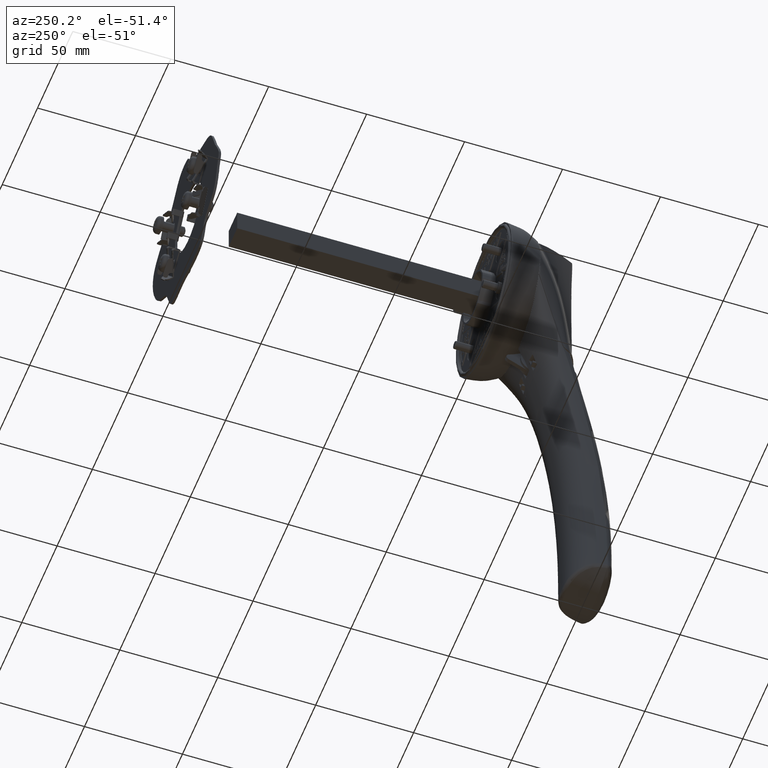
[diagram: clean part render]
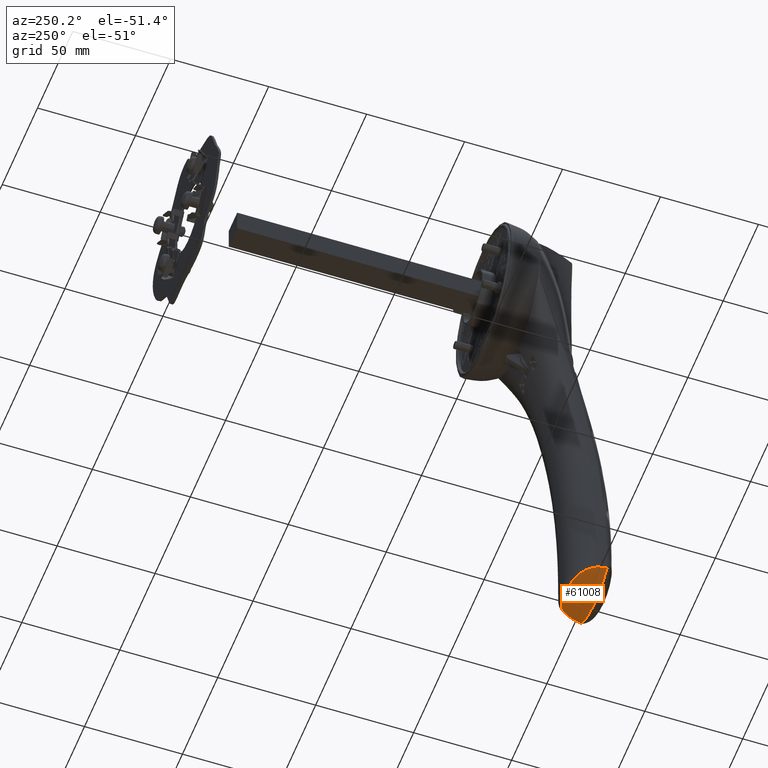
[diagram: same view with one face highlighted and labeled with its STEP entity id]
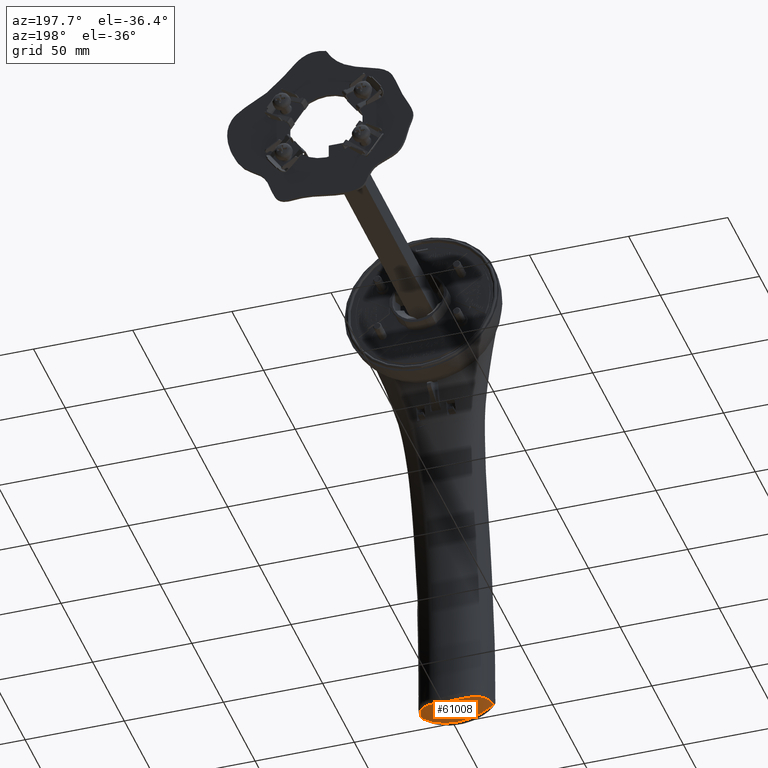
[diagram: same view with one face highlighted and labeled with its STEP entity id]
A machine part, auxiliary view. The second image highlights one B-rep face of the part: STEP entity #61008.
A second angle (auxiliary view) of the same face is appended — the face is thin or edge-on in the first view.
In plain terms, the highlighted conical surface has half-angle 7 deg.
Its self-contained STEP definition (entity closure, byte-faithful):
#15148=CARTESIAN_POINT('',(3.231428027554E-6,-5.626078505527E1,
-1.799437525151E2));
#15149=DIRECTION('',(0.E0,-1.E0,0.E0));
#15150=DIRECTION('',(-6.088506228290E-1,0.E0,-7.932848914991E-1));
#15151=AXIS2_PLACEMENT_3D('',#15148,#15149,#15150);
#15162=CARTESIAN_POINT('',(-1.814123205605E1,-5.626080679804E1,
-2.035824896846E2));
#15163=CARTESIAN_POINT('',(-1.810222139639E1,-5.599485802014E1,
-2.035712674617E2));
#15164=CARTESIAN_POINT('',(-1.802151278388E1,-5.543397917153E1,
-2.035463168761E2));
#15165=CARTESIAN_POINT('',(-1.788739697803E1,-5.459283047614E1,
-2.035186418850E2));
#15166=CARTESIAN_POINT('',(-1.775565903684E1,-5.387826353590E1,
-2.035082582568E2));
#15167=CARTESIAN_POINT('',(-1.763581293648E1,-5.331446953911E1,
-2.035116471888E2));
#15168=CARTESIAN_POINT('',(-1.744121268854E1,-5.248099572597E1,
-2.035291676805E2));
#15169=CARTESIAN_POINT('',(-1.708668726509E1,-5.127331630794E1,
-2.036062489023E2));
#15170=CARTESIAN_POINT('',(-1.655841593996E1,-5.000350192609E1,
-2.037896849698E2));
#15171=CARTESIAN_POINT('',(-1.611330975192E1,-4.915192161167E1,
-2.039653053998E2));
#15172=CARTESIAN_POINT('',(-1.583623422998E1,-4.867490956874E1,
-2.040784481645E2));
#15173=CARTESIAN_POINT('',(-1.540213410925E1,-4.797620445417E1,
-2.042585318738E2));
#15174=CARTESIAN_POINT('',(-1.484532746298E1,-4.721232581820E1,
-2.044951698323E2));
#15175=CARTESIAN_POINT('',(-1.414285480286E1,-4.640273938905E1,
-2.047896227944E2));
#15176=CARTESIAN_POINT('',(-1.358367874562E1,-4.582693526571E1,
-2.050195866158E2));
#15177=CARTESIAN_POINT('',(-1.309074207403E1,-4.537215505438E1,
-2.052166716018E2));
#15178=CARTESIAN_POINT('',(-1.268010144666E1,-4.502359161215E1,
-2.053764676888E2));
#15179=CARTESIAN_POINT('',(-1.225974037788E1,-4.468658785046E1,
-2.055368836739E2));
#15180=CARTESIAN_POINT('',(-1.172311829734E1,-4.429235355949E1,
-2.057353136779E2));
#15181=CARTESIAN_POINT('',(-1.083753647805E1,-4.371386942310E1,
-2.060473018833E2));
#15182=CARTESIAN_POINT('',(-9.680793689632E0,-4.308477297526E1,
-2.064223980770E2));
#15183=CARTESIAN_POINT('',(-8.580750614667E0,-4.262757266418E1,
-2.067329887714E2));
#15184=CARTESIAN_POINT('',(-7.821001767517E0,-4.236726521193E1,
-2.069256734171E2));
#15185=CARTESIAN_POINT('',(-7.306151647312E0,-4.220531146716E1,
-2.070503285343E2));
#15186=CARTESIAN_POINT('',(-6.400897618537E0,-4.195717510241E1,
-2.072537078907E2));
#15187=CARTESIAN_POINT('',(-5.091817896417E0,-4.169626622238E1,
-2.075019729394E2));
#15188=CARTESIAN_POINT('',(-3.478331823675E0,-4.151242904192E1,
-2.077298157232E2));
#15189=CARTESIAN_POINT('',(-2.077966604649E0,-4.144790404502E1,
-2.078557409945E2));
#15190=CARTESIAN_POINT('',(-1.055137367612E0,-4.143386735675E1,
-2.079036424604E2));
#15191=CARTESIAN_POINT('',(-4.583254145786E-1,-4.143127219802E1,
-2.079179265E2));
#15192=CARTESIAN_POINT('',(1.472291190251E-1,-4.143095381939E1,
-2.079229180984E2));
#15193=CARTESIAN_POINT('',(8.980547627805E-1,-4.143212612023E1,
-2.079108517734E2));
#15194=CARTESIAN_POINT('',(2.061075782727E0,-4.144820763948E1,
-2.078569363954E2));
#15195=CARTESIAN_POINT('',(3.464514380429E0,-4.151231531413E1,
-2.077317381468E2));
#15196=CARTESIAN_POINT('',(4.686526187866E0,-4.165108201268E1,
-2.075595671301E2));
#15197=CARTESIAN_POINT('',(5.492345826483E0,-4.178578190150E1,
-2.074214522354E2));
#15198=CARTESIAN_POINT('',(6.028158783319E0,-4.188751761235E1,
-2.073230237246E2));
#15199=CARTESIAN_POINT('',(6.947948494626E0,-4.209507239866E1,
-2.071372268944E2));
#15200=CARTESIAN_POINT('',(8.218460017455E0,-4.247893930309E1,
-2.068353969806E2));
#15201=CARTESIAN_POINT('',(9.440028066738E0,-4.298631422006E1,
-2.064906568243E2));
#15202=CARTESIAN_POINT('',(1.027070225318E1,-4.341083441366E1,
-2.062301493320E2));
#15203=CARTESIAN_POINT('',(1.073816195937E1,-4.367408818884E1,
-2.060764414914E2));
#15204=CARTESIAN_POINT('',(1.119594553148E1,-4.394856892998E1,
-2.059213908641E2));
#15205=CARTESIAN_POINT('',(1.175132168372E1,-4.431314764602E1,
-2.057252795731E2));
#15206=CARTESIAN_POINT('',(1.239156547483E1,-4.478596146832E1,
-2.054880636798E2));
#15207=CARTESIAN_POINT('',(1.300712636870E1,-4.529580014586E1,
-2.052503722044E2));
#15208=CARTESIAN_POINT('',(1.359661732053E1,-4.584085421538E1,
-2.050145302659E2));
#15209=CARTESIAN_POINT('',(1.406559119108E1,-4.632484478405E1,
-2.048215306401E2));
#15210=CARTESIAN_POINT('',(1.442617087197E1,-4.673025466415E1,
-2.046710225207E2));
#15211=CARTESIAN_POINT('',(1.494716002060E1,-4.735083856193E1,
-2.044520360329E2));
#15212=CARTESIAN_POINT('',(1.565893197030E1,-4.833387898079E1,
-2.041496049820E2));
#15213=CARTESIAN_POINT('',(1.632303009191E1,-4.951956507642E1,
-2.038793932752E2));
#15214=CARTESIAN_POINT('',(1.677830894065E1,-5.053212242066E1,
-2.037133566991E2));
#15215=CARTESIAN_POINT('',(1.717746779689E1,-5.157685242653E1,
-2.035857669323E2));
#15216=CARTESIAN_POINT('',(1.748924581052E1,-5.264968463187E1,
-2.035194545584E2));
#15217=CARTESIAN_POINT('',(1.773365686636E1,-5.375755732771E1,
-2.035063277835E2));
#15218=CARTESIAN_POINT('',(1.788960738393E1,-5.460623901207E1,
-2.035190334895E2));
#15219=CARTESIAN_POINT('',(1.802244013619E1,-5.544035595584E1,
-2.035465979044E2));
#15220=CARTESIAN_POINT('',(1.810253539157E1,-5.599701169830E1,
-2.035713656305E2));
#15221=CARTESIAN_POINT('',(1.814123181318E1,-5.626080694151E1,
-2.035824957099E2));
#20172=CARTESIAN_POINT('',(-1.814226095104E1,-5.626078505527E1,
-2.035817082532E2));
#20173=CARTESIAN_POINT('',(1.814225996700E1,-5.626078505527E1,
-2.035817139687E2));
#20174=VERTEX_POINT('',#20172);
#20175=VERTEX_POINT('',#20173);
#60999=CARTESIAN_POINT('',(3.231428014061E-6,-4.884596491568E1,
-1.799437525151E2));
#61000=DIRECTION('',(0.E0,-1.E0,0.E0));
#61001=DIRECTION('',(1.E0,0.E0,0.E0));
#61002=AXIS2_PLACEMENT_3D('',#60999,#61000,#61001);
#61003=CONICAL_SURFACE('',#61002,2.888712392436E1,7.E0);
#61004=ORIENTED_EDGE('',*,*,#60904,.F.);
#61005=ORIENTED_EDGE('',*,*,#60988,.T.);
#61006=EDGE_LOOP('',(#61004,#61005));
#61007=FACE_OUTER_BOUND('',#61006,.F.);
#61008=ADVANCED_FACE('',(#61007),#61003,.T.);
#15152=CIRCLE('',#15151,2.979756199998E1);
#15222=B_SPLINE_CURVE_WITH_KNOTS('',3,(#15162,#15163,#15164,#15165,#15166,
#15167,#15168,#15169,#15170,#15171,#15172,#15173,#15174,#15175,#15176,#15177,
#15178,#15179,#15180,#15181,#15182,#15183,#15184,#15185,#15186,#15187,#15188,
#15189,#15190,#15191,#15192,#15193,#15194,#15195,#15196,#15197,#15198,#15199,
#15200,#15201,#15202,#15203,#15204,#15205,#15206,#15207,#15208,#15209,#15210,
#15211,#15212,#15213,#15214,#15215,#15216,#15217,#15218,#15219,#15220,#15221),
.UNSPECIFIED.,.F.,.F.,(4,1,1,1,1,1,1,1,1,1,1,1,1,1,1,1,1,1,1,1,1,1,1,1,1,1,1,1,
1,1,1,1,1,1,1,1,1,1,1,1,1,1,1,1,1,1,1,1,1,1,1,1,1,1,1,1,1,4),(0.E0,
1.388136233101E-2,2.956281833194E-2,4.524427433287E-2,5.308500233334E-2,
6.092573033380E-2,9.228864233566E-2,1.236515543375E-1,1.393330103384E-1,
1.471737383389E-1,1.550144663394E-1,1.863773783412E-1,2.020588343422E-1,
2.177402903431E-1,2.334217463440E-1,2.412624743445E-1,2.491032023450E-1,
2.647846583459E-1,2.804661143468E-1,3.118290263487E-1,3.431919383505E-1,
3.510326663510E-1,3.588733943515E-1,3.745548503524E-1,4.059177623543E-1,
4.372806743561E-1,4.686435863580E-1,4.843250423589E-1,4.921657703594E-1,
5.000064983598E-1,5.156879543608E-1,5.313694103617E-1,5.627323223635E-1,
5.940952343654E-1,6.019359623659E-1,6.097766903663E-1,6.254581463673E-1,
6.568210583691E-1,6.881839703710E-1,7.038654263719E-1,7.117061543724E-1,
7.195468823728E-1,7.352283383738E-1,7.509097943747E-1,7.665912503756E-1,
7.822727063766E-1,7.979541623775E-1,8.057948903780E-1,8.136356183784E-1,
8.449985303803E-1,8.763614423821E-1,8.920428983831E-1,9.077243543840E-1,
9.390872663859E-1,9.547687223868E-1,9.704501783877E-1,9.861316343886E-1,1.E0),
.UNSPECIFIED.);
#60904=EDGE_CURVE('',#20174,#20175,#15222,.T.);
#60988=EDGE_CURVE('',#20174,#20175,#15152,.T.);